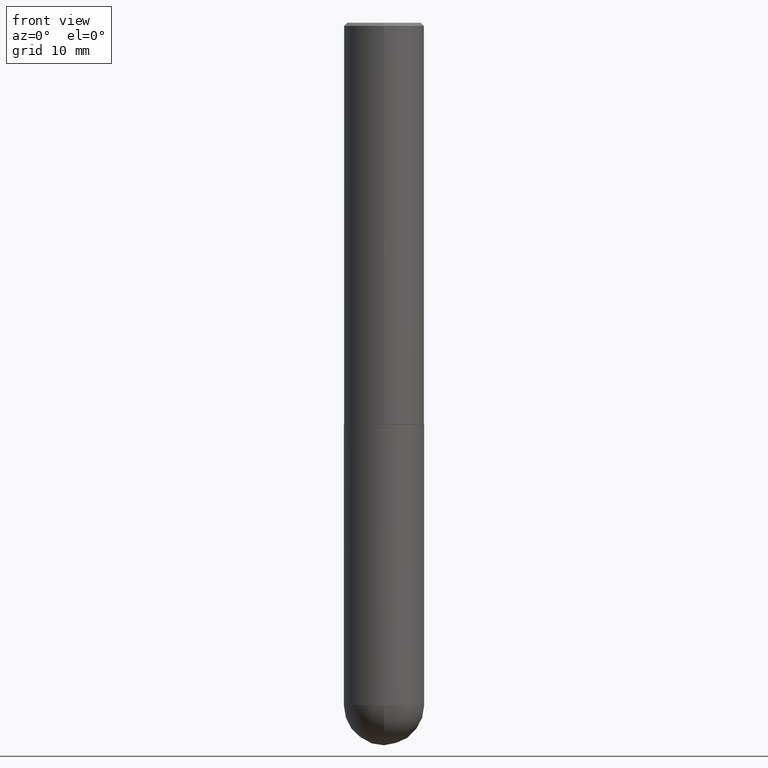
[diagram: clean part render]
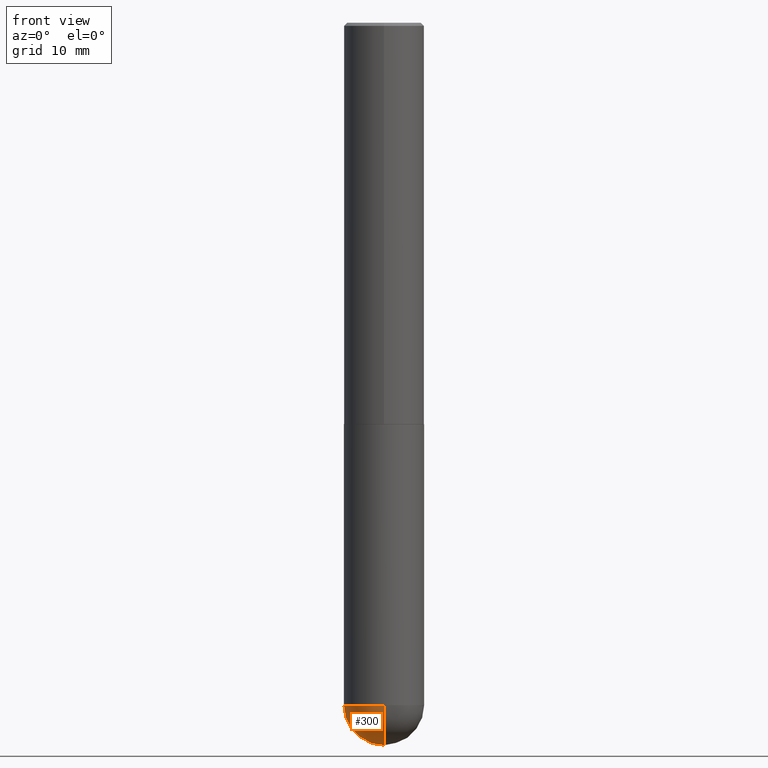
[diagram: same view with one face highlighted and labeled with its STEP entity id]
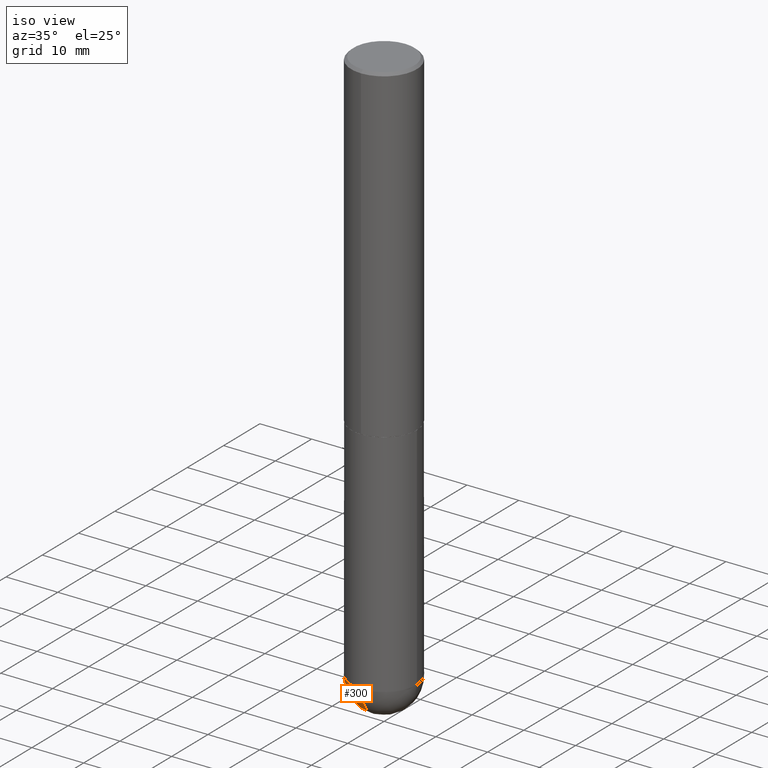
[diagram: same view with one face highlighted and labeled with its STEP entity id]
A machine part, front view. The second image highlights one B-rep face of the part: STEP entity #300.
A second angle (iso view) of the same face is appended — the face is thin or edge-on in the first view.
In plain terms, the highlighted spherical surface has radius 6.35 mm.
Its self-contained STEP definition (entity closure, byte-faithful):
#3 = EDGE_CURVE ( 'NONE', #49, #74, #329, .T. ) ;
#21 = CARTESIAN_POINT ( 'NONE',  ( 1.745740669421669032E-15, 0.2499999999999849842, -4.250000000000001776 ) ) ;
#25 = CARTESIAN_POINT ( 'NONE',  ( 1.006212264837294429E-28, -1.531297805822341912E-14, -4.250000000000000000 ) ) ;
#49 = VERTEX_POINT ( 'NONE', #56 ) ;
#50 = CARTESIAN_POINT ( 'NONE',  ( 1.006212264837294429E-28, -1.531297805822341912E-14, -4.250000000000000000 ) ) ;
#54 = DIRECTION ( 'NONE',  ( 1.000000000000000000, -6.982962677686270655E-15, 0.000000000000000000 ) ) ;
#56 = CARTESIAN_POINT ( 'NONE',  ( 1.068417942853397052E-28, -1.617054030794486372E-14, -4.500000000000000888 ) ) ;
#74 = VERTEX_POINT ( 'NONE', #21 ) ;
#76 = ORIENTED_EDGE ( 'NONE', *, *, #3, .F. ) ;
#88 = EDGE_CURVE ( 'NONE', #74, #278, #186, .T. ) ;
#116 = DIRECTION ( 'NONE',  ( 1.000000000000000000, -6.982962677686265922E-15, 4.883557194083112340E-29 ) ) ;
#126 = DIRECTION ( 'NONE',  ( -1.000000000000000000, 7.105427357601001070E-15, -4.926315508542082329E-29 ) ) ;
#138 = AXIS2_PLACEMENT_3D ( 'NONE', #50, #126, #320 ) ;
#139 = ORIENTED_EDGE ( 'NONE', *, *, #88, .F. ) ;
#142 = AXIS2_PLACEMENT_3D ( 'NONE', #25, #116, #155 ) ;
#143 = AXIS2_PLACEMENT_3D ( 'NONE', #184, #380, #315 ) ;
#155 = DIRECTION ( 'NONE',  ( 6.982962677686266711E-15, 1.000000000000000000, 0.000000000000000000 ) ) ;
#174 = EDGE_CURVE ( 'NONE', #49, #212, #258, .T. ) ;
#184 = CARTESIAN_POINT ( 'NONE',  ( 1.006212264837294429E-28, -1.531297805822341912E-14, -4.250000000000000000 ) ) ;
#186 = CIRCLE ( 'NONE', #193, 0.2500000000000000000 ) ;
#193 = AXIS2_PLACEMENT_3D ( 'NONE', #285, #372, #54 ) ;
#201 = EDGE_LOOP ( 'NONE', ( #76, #208, #263, #139 ) ) ;
#208 = ORIENTED_EDGE ( 'NONE', *, *, #174, .T. ) ;
#210 = EDGE_CURVE ( 'NONE', #278, #212, #244, .T. ) ;
#212 = VERTEX_POINT ( 'NONE', #409 ) ;
#214 = DIRECTION ( 'NONE',  ( -2.445468806185136597E-29, 3.491481338843145583E-15, 1.000000000000000000 ) ) ;
#224 = CARTESIAN_POINT ( 'NONE',  ( -0.2500000000000000000, -1.000739267919536879E-14, -4.250000000000000000 ) ) ;
#244 = CIRCLE ( 'NONE', #330, 0.2500000000000000000 ) ;
#258 = CIRCLE ( 'NONE', #138, 0.2500000000000001110 ) ;
#263 = ORIENTED_EDGE ( 'NONE', *, *, #210, .F. ) ;
#278 = VERTEX_POINT ( 'NONE', #224 ) ;
#285 = CARTESIAN_POINT ( 'NONE',  ( 1.039324242628683054E-28, -1.483879569008337040E-14, -4.250000000000000000 ) ) ;
#286 = DIRECTION ( 'NONE',  ( 1.000000000000000000, -6.982962677686270655E-15, 0.000000000000000000 ) ) ;
#291 = CARTESIAN_POINT ( 'NONE',  ( 1.039324242628683054E-28, -1.483879569008337040E-14, -4.250000000000000000 ) ) ;
#300 = ADVANCED_FACE ( 'NONE', ( #377 ), #346, .T. ) ;
#315 = DIRECTION ( 'NONE',  ( 6.982962677686265922E-15, 1.000000000000000000, -4.370956789862818783E-15 ) ) ;
#320 = DIRECTION ( 'NONE',  ( -7.105427357601001859E-15, -1.000000000000000000, 0.000000000000000000 ) ) ;
#329 = CIRCLE ( 'NONE', #142, 0.2500000000000001110 ) ;
#330 = AXIS2_PLACEMENT_3D ( 'NONE', #291, #214, #286 ) ;
#346 = SPHERICAL_SURFACE ( 'NONE', #143, 0.2500000000000001110 ) ;
#372 = DIRECTION ( 'NONE',  ( -2.445468806185136597E-29, 3.491481338843145583E-15, 1.000000000000000000 ) ) ;
#377 = FACE_OUTER_BOUND ( 'NONE', #201, .T. ) ;
#380 = DIRECTION ( 'NONE',  ( -1.000000000000000000, 6.982962677686265922E-15, -4.883557194083113462E-29 ) ) ;
#409 = CARTESIAN_POINT ( 'NONE',  ( -1.776356839400148307E-15, -0.2500000000000151545, -4.249999999999999112 ) ) ;